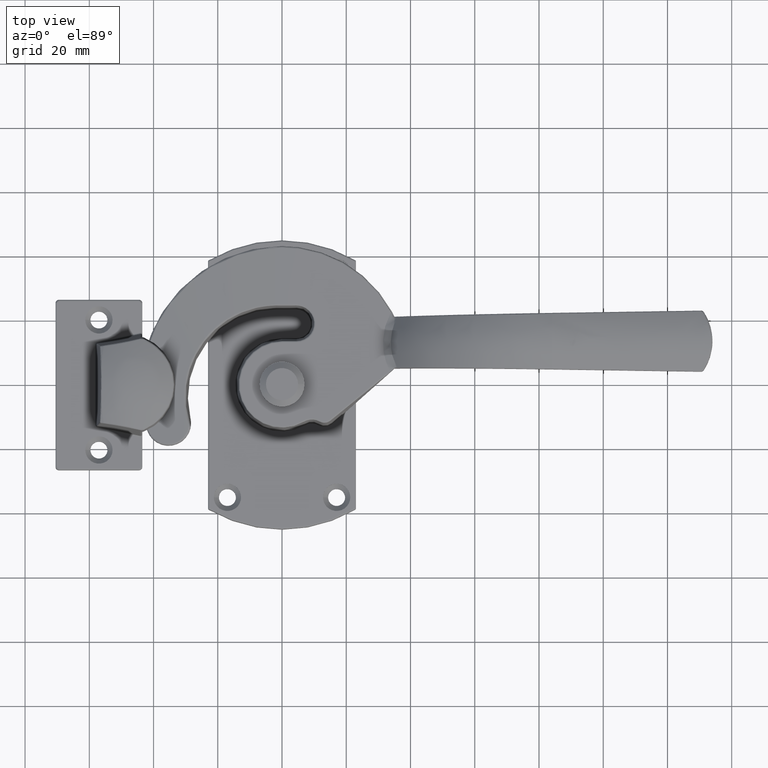
[diagram: clean part render]
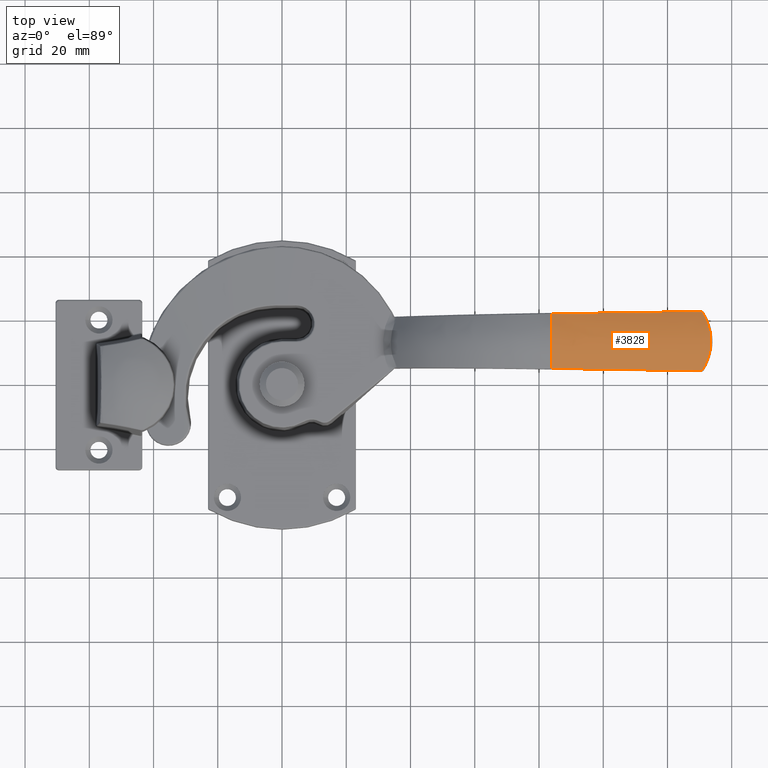
[diagram: same view with one face highlighted and labeled with its STEP entity id]
A machine part, top view. The second image highlights one B-rep face of the part: STEP entity #3828.
In plain terms, the highlighted face is a freeform B-spline surface patch.
Its self-contained STEP definition (entity closure, byte-faithful):
#62=B_SPLINE_CURVE_WITH_KNOTS('',3,(#6315,#6316,#6317,#6318,#6319),
 .UNSPECIFIED.,.F.,.F.,(4,1,4),(-0.0520924588514821,-0.0260462294257445,
-6.96109968602194E-15),.UNSPECIFIED.);
#64=B_SPLINE_CURVE_WITH_KNOTS('',3,(#6348,#6349,#6350,#6351),
 .UNSPECIFIED.,.F.,.F.,(4,4),(0.,4.6474050495561),.UNSPECIFIED.);
#70=B_SPLINE_CURVE_WITH_KNOTS('',3,(#6470,#6471,#6472,#6473,#6474),
 .UNSPECIFIED.,.F.,.F.,(4,1,4),(-0.052045605014277,-0.0260228025091116,
-3.94623023793629E-12),.UNSPECIFIED.);
#73=B_SPLINE_CURVE_WITH_KNOTS('',3,(#6537,#6538,#6539,#6540,#6541,#6542,
#6543),.UNSPECIFIED.,.F.,.F.,(4,1,1,1,4),(0.0654294133109913,0.611466551895782,
0.884485121188177,1.43052225977297,1.97655939835776),.UNSPECIFIED.);
#74=B_SPLINE_CURVE_WITH_KNOTS('',3,(#6565,#6566,#6567,#6568),
 .UNSPECIFIED.,.F.,.F.,(4,4),(0.353323940459629,5.00072519975135),
 .UNSPECIFIED.);
#81=B_SPLINE_CURVE_WITH_KNOTS('',3,(#6696,#6697,#6698,#6699,#6700,#6701),
 .UNSPECIFIED.,.F.,.F.,(4,2,4),(0.228873809951192,0.723323630431264,1.10723239206333),
 .UNSPECIFIED.);
#82=B_SPLINE_CURVE_WITH_KNOTS('',3,(#6702,#6703,#6704,#6705,#6706,#6707),
 .UNSPECIFIED.,.F.,.F.,(4,2,4),(1.10723239206333,1.47994910023382,1.97492256992082),
 .UNSPECIFIED.);
#136=B_SPLINE_SURFACE_WITH_KNOTS('',3,1,((#6679,#6680),(#6681,#6682),(#6683,
#6684),(#6685,#6686),(#6687,#6688),(#6689,#6690),(#6691,#6692),(#6693,#6694)),
 .UNSPECIFIED.,.F.,.F.,.F.,(4,2,2,4),(2,2),(-2.21451527045554,-1.47994894695298,
-0.723323774014182,0.),(0.,6.),.UNSPECIFIED.);
#918=FACE_OUTER_BOUND('',#1198,.T.);
#1198=EDGE_LOOP('',(#3044,#3045,#3046,#3047,#3048,#3049,#3050));
#1780=VERTEX_POINT('',#6312);
#1781=VERTEX_POINT('',#6314);
#1783=VERTEX_POINT('',#6346);
#1789=VERTEX_POINT('',#6460);
#1791=VERTEX_POINT('',#6468);
#1794=VERTEX_POINT('',#6564);
#1802=VERTEX_POINT('',#6695);
#2219=EDGE_CURVE('',#1780,#1781,#62,.T.);
#2223=EDGE_CURVE('',#1783,#1780,#64,.T.);
#2233=EDGE_CURVE('',#1791,#1789,#70,.T.);
#2238=EDGE_CURVE('',#1781,#1791,#73,.T.);
#2239=EDGE_CURVE('',#1789,#1794,#74,.T.);
#2251=EDGE_CURVE('',#1783,#1802,#81,.T.);
#2252=EDGE_CURVE('',#1802,#1794,#82,.T.);
#3044=ORIENTED_EDGE('',*,*,#2239,.F.);
#3045=ORIENTED_EDGE('',*,*,#2233,.F.);
#3046=ORIENTED_EDGE('',*,*,#2238,.F.);
#3047=ORIENTED_EDGE('',*,*,#2219,.F.);
#3048=ORIENTED_EDGE('',*,*,#2223,.F.);
#3049=ORIENTED_EDGE('',*,*,#2251,.T.);
#3050=ORIENTED_EDGE('',*,*,#2252,.T.);
#3828=ADVANCED_FACE('',(#918),#136,.F.);
#6312=CARTESIAN_POINT('',(130.467284076359,22.2225262367911,34.7753258545567));
#6314=CARTESIAN_POINT('',(130.893700947009,21.9895560746523,34.8944476453408));
#6315=CARTESIAN_POINT('Ctrl Pts',(130.467284076397,22.2225262362904,34.7753258548171));
#6316=CARTESIAN_POINT('Ctrl Pts',(130.554091922089,22.223891523789,34.7746156619042));
#6317=CARTESIAN_POINT('Ctrl Pts',(130.727426309085,22.1779576239924,34.7986348262158));
#6318=CARTESIAN_POINT('Ctrl Pts',(130.849977704771,22.0584106065419,34.859845561909));
#6319=CARTESIAN_POINT('Ctrl Pts',(130.893700946254,21.9895560742588,34.8944476455386));
#6346=CARTESIAN_POINT('',(84.,21.491896274182,35.1354654003376));
#6348=CARTESIAN_POINT('Ctrl Pts',(84.,21.491896274182,35.1354654003376));
#6349=CARTESIAN_POINT('Ctrl Pts',(99.4891412693504,21.7353791945934,35.0219055583992));
#6350=CARTESIAN_POINT('Ctrl Pts',(114.978239045929,21.9789192324636,34.9020449288955));
#6351=CARTESIAN_POINT('Ctrl Pts',(130.467284076355,22.2225262362897,34.7753258548175));
#6460=CARTESIAN_POINT('',(130.467284076421,3.78007447116842,34.8255026438609));
#6468=CARTESIAN_POINT('',(130.893700946995,4.01302796690051,34.942912255491));
#6470=CARTESIAN_POINT('Ctrl Pts',(130.893700946254,4.01302796728839,34.9429122556831));
#6471=CARTESIAN_POINT('Ctrl Pts',(130.849923043566,3.94409216328828,34.9087665895435));
#6472=CARTESIAN_POINT('Ctrl Pts',(130.727224990442,3.82453129620374,34.8484223028996));
#6473=CARTESIAN_POINT('Ctrl Pts',(130.554013921779,3.77871051104683,34.8248032561725));
#6474=CARTESIAN_POINT('Ctrl Pts',(130.467284076404,3.78007447168956,34.8255026441281));
#6537=CARTESIAN_POINT('Ctrl Pts',(130.893700946254,21.9895560742589,34.8944476455385));
#6538=CARTESIAN_POINT('Ctrl Pts',(131.810080762384,20.5464585020415,35.6196603689971));
#6539=CARTESIAN_POINT('Ctrl Pts',(132.899340516536,18.0776493932734,36.5012976521488));
#6540=CARTESIAN_POINT('Ctrl Pts',(133.676678621928,13.4963174436456,37.1421234035063));
#6541=CARTESIAN_POINT('Ctrl Pts',(133.274173669474,8.75676412188192,36.8250264057955));
#6542=CARTESIAN_POINT('Ctrl Pts',(131.812049846886,5.45912556291643,35.6592013658471));
#6543=CARTESIAN_POINT('Ctrl Pts',(130.893700946254,4.01302796728842,34.9429122556831));
#6564=CARTESIAN_POINT('',(84.,4.51065486825841,35.1804228988626));
#6565=CARTESIAN_POINT('Ctrl Pts',(130.467284076523,3.78007447168769,34.8255026441271));
#6566=CARTESIAN_POINT('Ctrl Pts',(114.978237785379,4.02366362045288,34.9504060404734));
#6567=CARTESIAN_POINT('Ctrl Pts',(99.4891401047995,4.26718721259794,35.0685325326511));
#6568=CARTESIAN_POINT('Ctrl Pts',(84.,4.51065486825841,35.1804228988626));
#6679=CARTESIAN_POINT('Ctrl Pts',(84.,2.40323799056093,34.0431427173644));
#6680=CARTESIAN_POINT('Ctrl Pts',(144.,2.40323799056093,34.0431427173644));
#6681=CARTESIAN_POINT('Ctrl Pts',(84.,4.47721213309574,35.3442158835024));
#6682=CARTESIAN_POINT('Ctrl Pts',(144.,4.47721213309574,35.3442158835024));
#6683=CARTESIAN_POINT('Ctrl Pts',(83.9999999999935,6.81548274374902,36.2215615431186));
#6684=CARTESIAN_POINT('Ctrl Pts',(143.999999999993,6.81548274374902,36.2215615431186));
#6685=CARTESIAN_POINT('Ctrl Pts',(83.9999999999935,11.7229272760777,37.1188599163261));
#6686=CARTESIAN_POINT('Ctrl Pts',(143.999999999993,11.7229272760777,37.1188599163261));
#6687=CARTESIAN_POINT('Ctrl Pts',(83.9999999997703,14.2954688566326,37.1120076176995));
#6688=CARTESIAN_POINT('Ctrl Pts',(143.99999999977,14.2954688566326,37.1120076176995));
#6689=CARTESIAN_POINT('Ctrl Pts',(83.9999999997703,19.160830206926,36.1947994302736));
#6690=CARTESIAN_POINT('Ctrl Pts',(143.99999999977,19.160830206926,36.1947994302736));
#6691=CARTESIAN_POINT('Ctrl Pts',(84.,21.4597617608794,35.3244374316006));
#6692=CARTESIAN_POINT('Ctrl Pts',(144.,21.4597617608794,35.3244374316006));
#6693=CARTESIAN_POINT('Ctrl Pts',(84.,23.5022080855532,34.0431427173521));
#6694=CARTESIAN_POINT('Ctrl Pts',(144.,23.5022080855532,34.0431427173521));
#6695=CARTESIAN_POINT('',(83.9999999998844,12.9527230380471,36.9999834230904));
#6696=CARTESIAN_POINT('Ctrl Pts',(83.9999999999456,21.4919785819676,35.1356418557245));
#6697=CARTESIAN_POINT('Ctrl Pts',(83.9999999998776,19.9969951535379,35.8329783195552));
#6698=CARTESIAN_POINT('Ctrl Pts',(83.9999999997703,18.4084019629409,36.3366456974151));
#6699=CARTESIAN_POINT('Ctrl Pts',(83.9999999997703,15.5207818814556,36.8810140577947));
#6700=CARTESIAN_POINT('Ctrl Pts',(83.9999999998277,14.2367601598985,36.9999834052006));
#6701=CARTESIAN_POINT('Ctrl Pts',(83.9999999998844,12.9527230380471,36.9999834230904));
#6702=CARTESIAN_POINT('Ctrl Pts',(83.9999999998844,12.9527230380471,36.9999834230904));
#6703=CARTESIAN_POINT('Ctrl Pts',(83.9999999999393,11.7061193675204,36.9999834404587));
#6704=CARTESIAN_POINT('Ctrl Pts',(83.9999999999935,10.4595011815384,36.8878496274008));
#6705=CARTESIAN_POINT('Ctrl Pts',(83.9999999999935,7.60397278155045,36.365732470278));
#6706=CARTESIAN_POINT('Ctrl Pts',(83.9999999999965,6.010977728186,35.8702289294997));
#6707=CARTESIAN_POINT('Ctrl Pts',(83.9999999999984,4.51056697450494,35.1806141313205));